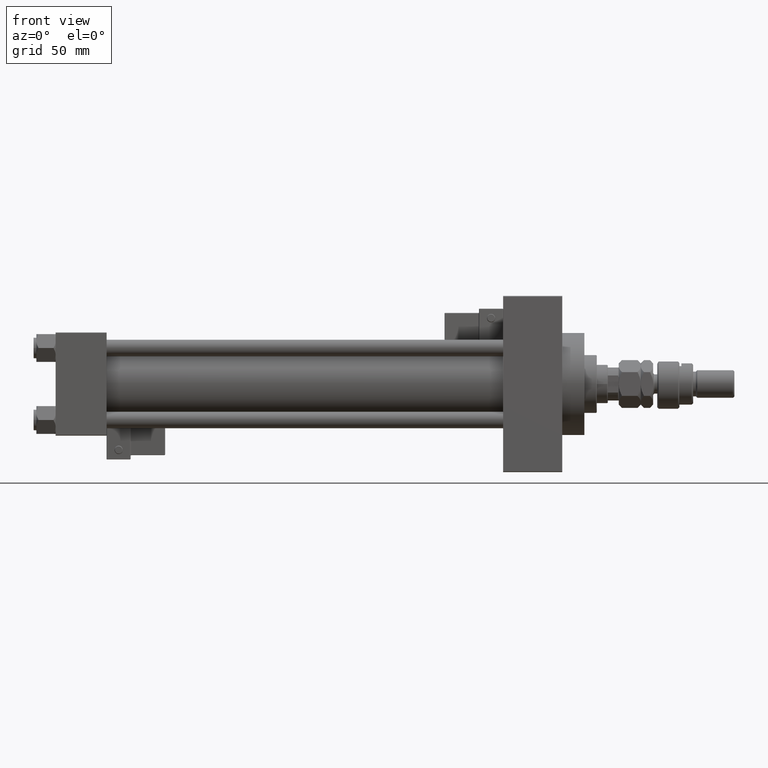
[diagram: clean part render]
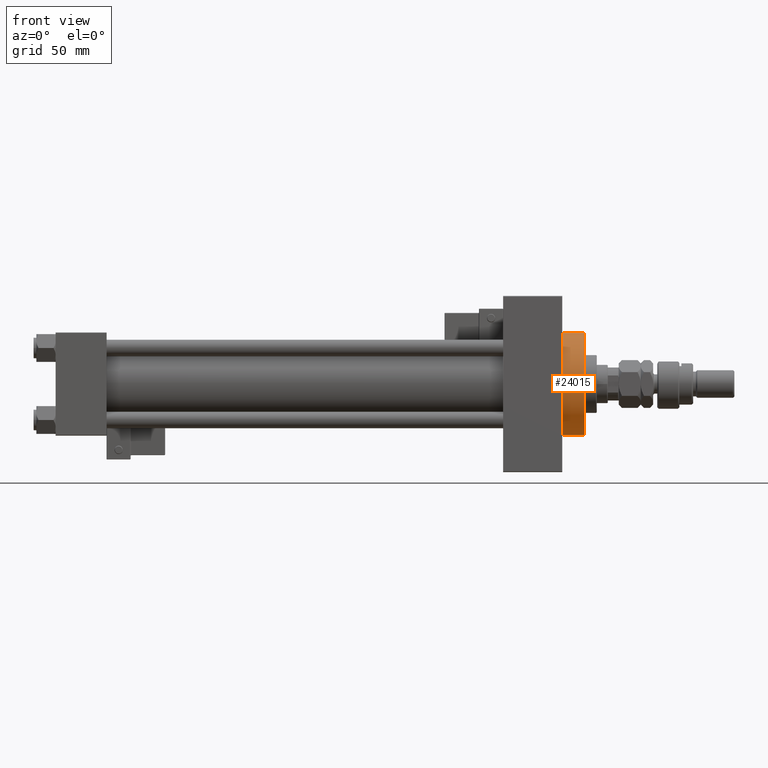
[diagram: same view with one face highlighted and labeled with its STEP entity id]
A machine part, front view. The second image highlights one B-rep face of the part: STEP entity #24015.
In plain terms, the highlighted cylindrical surface (partial cylindrical patch) has radius 37 mm, axis along (-1, -0, -0).
Its self-contained STEP definition (entity closure, byte-faithful):
#442 = EDGE_CURVE ( 'NONE', #6271, #49843, #6512, .T. ) ;
#671 = DIRECTION ( 'NONE',  ( 1.000000000000000000, 0.000000000000000000, 0.000000000000000000 ) ) ;
#1833 = CARTESIAN_POINT ( 'NONE',  ( 383.9999999999999432, 4.531193156845206793E-15, -37.00000000000000000 ) ) ;
#4501 = VECTOR ( 'NONE', #33274, 1000.000000000000000 ) ;
#4645 = CARTESIAN_POINT ( 'NONE',  ( 383.9999999999999432, 0.000000000000000000, 37.00000000000000000 ) ) ;
#5057 = EDGE_CURVE ( 'NONE', #6271, #11281, #22243, .T. ) ;
#5743 = ORIENTED_EDGE ( 'NONE', *, *, #29672, .T. ) ;
#6271 = VERTEX_POINT ( 'NONE', #21676 ) ;
#6512 = CIRCLE ( 'NONE', #44262, 37.00000000000000000 ) ;
#6599 = CARTESIAN_POINT ( 'NONE',  ( 383.9999999999999432, 0.000000000000000000, 0.000000000000000000 ) ) ;
#11281 = VERTEX_POINT ( 'NONE', #23777 ) ;
#12500 = EDGE_LOOP ( 'NONE', ( #36882, #20803, #50019, #5743 ) ) ;
#12919 = LINE ( 'NONE', #16498, #4501 ) ;
#13300 = DIRECTION ( 'NONE',  ( 0.000000000000000000, 0.000000000000000000, -1.000000000000000000 ) ) ;
#14834 = DIRECTION ( 'NONE',  ( 0.000000000000000000, 0.000000000000000000, 1.000000000000000000 ) ) ;
#15547 = VERTEX_POINT ( 'NONE', #15638 ) ;
#15638 = CARTESIAN_POINT ( 'NONE',  ( 367.9999999999999432, 4.531193156845206793E-15, -37.00000000000000000 ) ) ;
#16498 = CARTESIAN_POINT ( 'NONE',  ( 383.9999999999999432, 4.531193156845206793E-15, -37.00000000000000000 ) ) ;
#19523 = CYLINDRICAL_SURFACE ( 'NONE', #28992, 37.00000000000000000 ) ;
#20803 = ORIENTED_EDGE ( 'NONE', *, *, #442, .F. ) ;
#21676 = CARTESIAN_POINT ( 'NONE',  ( 383.9999999999999432, 0.000000000000000000, 37.00000000000000000 ) ) ;
#22243 = LINE ( 'NONE', #4645, #32055 ) ;
#23088 = CIRCLE ( 'NONE', #37112, 37.00000000000000000 ) ;
#23777 = CARTESIAN_POINT ( 'NONE',  ( 367.9999999999999432, 0.000000000000000000, 37.00000000000000000 ) ) ;
#24015 = ADVANCED_FACE ( 'NONE', ( #52497 ), #19523, .T. ) ;
#25734 = EDGE_CURVE ( 'NONE', #49843, #15547, #12919, .T. ) ;
#28992 = AXIS2_PLACEMENT_3D ( 'NONE', #6599, #48390, #14834 ) ;
#29672 = EDGE_CURVE ( 'NONE', #11281, #15547, #23088, .T. ) ;
#32055 = VECTOR ( 'NONE', #47541, 1000.000000000000000 ) ;
#33274 = DIRECTION ( 'NONE',  ( -1.000000000000000000, -0.000000000000000000, -0.000000000000000000 ) ) ;
#36151 = DIRECTION ( 'NONE',  ( 1.000000000000000000, 0.000000000000000000, 0.000000000000000000 ) ) ;
#36417 = CARTESIAN_POINT ( 'NONE',  ( 383.9999999999999432, 0.000000000000000000, 0.000000000000000000 ) ) ;
#36882 = ORIENTED_EDGE ( 'NONE', *, *, #25734, .F. ) ;
#37112 = AXIS2_PLACEMENT_3D ( 'NONE', #38601, #671, #13300 ) ;
#38601 = CARTESIAN_POINT ( 'NONE',  ( 367.9999999999999432, 0.000000000000000000, 0.000000000000000000 ) ) ;
#43858 = DIRECTION ( 'NONE',  ( 0.000000000000000000, 0.000000000000000000, -1.000000000000000000 ) ) ;
#44262 = AXIS2_PLACEMENT_3D ( 'NONE', #36417, #36151, #43858 ) ;
#47541 = DIRECTION ( 'NONE',  ( -1.000000000000000000, -0.000000000000000000, -0.000000000000000000 ) ) ;
#48390 = DIRECTION ( 'NONE',  ( -1.000000000000000000, -0.000000000000000000, -0.000000000000000000 ) ) ;
#49843 = VERTEX_POINT ( 'NONE', #1833 ) ;
#50019 = ORIENTED_EDGE ( 'NONE', *, *, #5057, .T. ) ;
#52497 = FACE_OUTER_BOUND ( 'NONE', #12500, .T. ) ;